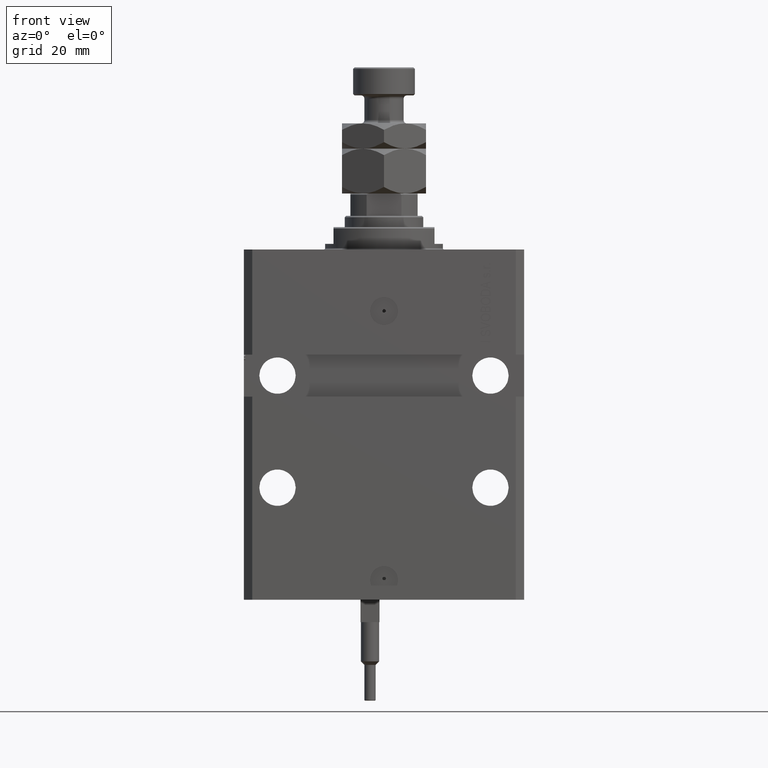
[diagram: clean part render]
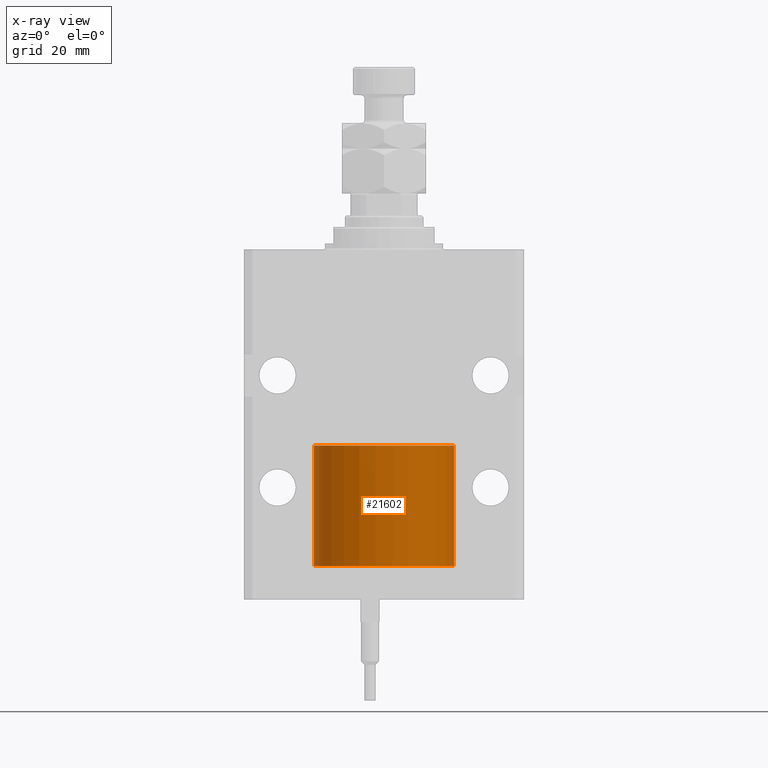
[diagram: x-ray — body ghosted, one internal face saturated and labeled with its STEP entity id]
A machine part, front view, then the same camera in x-ray: the body is ghosted and one INTERNAL B-rep face — a face not visible from any outside direction — is saturated and labeled: STEP entity #21602.
In plain terms, the highlighted cylindrical surface (partial cylindrical patch) has radius 25 mm, axis along (-0, -0, -1).
Its self-contained STEP definition (entity closure, byte-faithful):
#1576 = DIRECTION ( 'NONE',  ( 1.000000000000000000, 0.000000000000000000, 0.000000000000000000 ) ) ;
#2722 = CIRCLE ( 'NONE', #48579, 25.00000000000000000 ) ;
#2971 = VECTOR ( 'NONE', #3424, 1000.000000000000000 ) ;
#3424 = DIRECTION ( 'NONE',  ( -0.000000000000000000, -0.000000000000000000, -1.000000000000000000 ) ) ;
#3467 = FACE_OUTER_BOUND ( 'NONE', #24264, .T. ) ;
#4484 = LINE ( 'NONE', #20109, #41251 ) ;
#7876 = EDGE_CURVE ( 'NONE', #32183, #17642, #2722, .T. ) ;
#8326 = DIRECTION ( 'NONE',  ( 0.000000000000000000, 0.000000000000000000, 1.000000000000000000 ) ) ;
#11875 = LINE ( 'NONE', #15706, #2971 ) ;
#14148 = CARTESIAN_POINT ( 'NONE',  ( 25.00000000000000000, 3.061616997868383043E-15, 0.000000000000000000 ) ) ;
#14238 = DIRECTION ( 'NONE',  ( -0.000000000000000000, -0.000000000000000000, -1.000000000000000000 ) ) ;
#15706 = CARTESIAN_POINT ( 'NONE',  ( 25.00000000000000000, 3.061616997868383043E-15, 43.10000000000000142 ) ) ;
#17642 = VERTEX_POINT ( 'NONE', #14148 ) ;
#20109 = CARTESIAN_POINT ( 'NONE',  ( -25.00000000000000000, 0.000000000000000000, 43.10000000000000142 ) ) ;
#21602 = ADVANCED_FACE ( 'NONE', ( #3467 ), #33976, .T. ) ;
#24264 = EDGE_LOOP ( 'NONE', ( #30516, #31620, #32598, #34355 ) ) ;
#24547 = EDGE_CURVE ( 'NONE', #41220, #32183, #4484, .T. ) ;
#27233 = CARTESIAN_POINT ( 'NONE',  ( -25.00000000000000000, 0.000000000000000000, 43.10000000000000142 ) ) ;
#29255 = EDGE_CURVE ( 'NONE', #48660, #17642, #11875, .T. ) ;
#30516 = ORIENTED_EDGE ( 'NONE', *, *, #29255, .F. ) ;
#31153 = CARTESIAN_POINT ( 'NONE',  ( 0.000000000000000000, 0.000000000000000000, 0.000000000000000000 ) ) ;
#31620 = ORIENTED_EDGE ( 'NONE', *, *, #32783, .F. ) ;
#31917 = DIRECTION ( 'NONE',  ( 1.000000000000000000, 0.000000000000000000, 0.000000000000000000 ) ) ;
#32183 = VERTEX_POINT ( 'NONE', #34151 ) ;
#32598 = ORIENTED_EDGE ( 'NONE', *, *, #24547, .T. ) ;
#32783 = EDGE_CURVE ( 'NONE', #41220, #48660, #50499, .T. ) ;
#33976 = CYLINDRICAL_SURFACE ( 'NONE', #37077, 25.00000000000000000 ) ;
#34151 = CARTESIAN_POINT ( 'NONE',  ( -25.00000000000000000, 0.000000000000000000, 0.000000000000000000 ) ) ;
#34355 = ORIENTED_EDGE ( 'NONE', *, *, #7876, .T. ) ;
#35745 = DIRECTION ( 'NONE',  ( -0.000000000000000000, -0.000000000000000000, -1.000000000000000000 ) ) ;
#37077 = AXIS2_PLACEMENT_3D ( 'NONE', #49615, #14238, #45524 ) ;
#38813 = CARTESIAN_POINT ( 'NONE',  ( 25.00000000000000000, 3.061616997868383043E-15, 43.10000000000000142 ) ) ;
#41220 = VERTEX_POINT ( 'NONE', #27233 ) ;
#41251 = VECTOR ( 'NONE', #35745, 1000.000000000000000 ) ;
#41530 = CARTESIAN_POINT ( 'NONE',  ( 0.000000000000000000, 0.000000000000000000, 43.10000000000000142 ) ) ;
#45524 = DIRECTION ( 'NONE',  ( -1.000000000000000000, 0.000000000000000000, 0.000000000000000000 ) ) ;
#48579 = AXIS2_PLACEMENT_3D ( 'NONE', #31153, #8326, #31917 ) ;
#48660 = VERTEX_POINT ( 'NONE', #38813 ) ;
#48727 = DIRECTION ( 'NONE',  ( 0.000000000000000000, 0.000000000000000000, 1.000000000000000000 ) ) ;
#49615 = CARTESIAN_POINT ( 'NONE',  ( 0.000000000000000000, 0.000000000000000000, 43.10000000000000142 ) ) ;
#49656 = AXIS2_PLACEMENT_3D ( 'NONE', #41530, #48727, #1576 ) ;
#50499 = CIRCLE ( 'NONE', #49656, 25.00000000000000000 ) ;